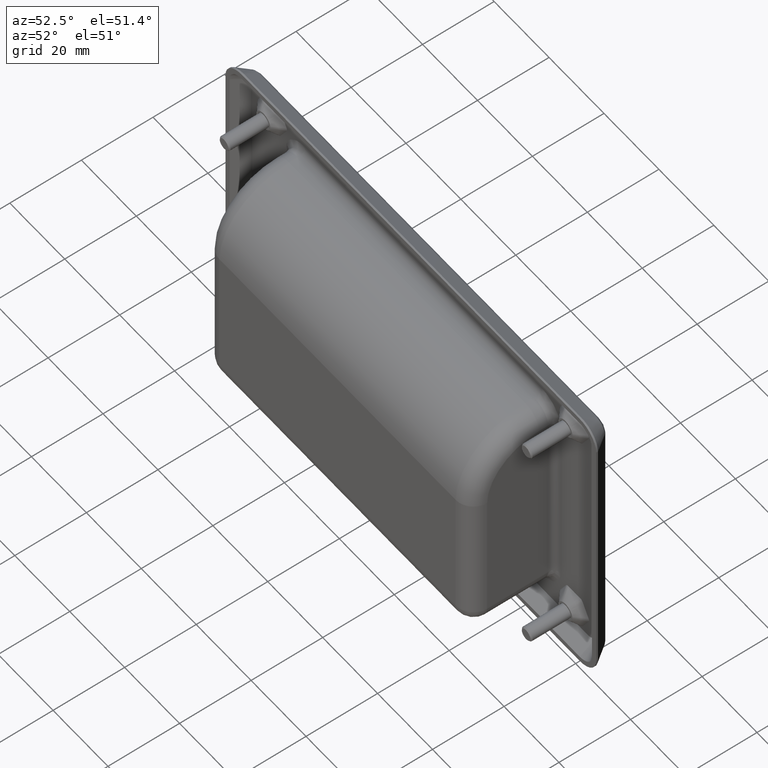
[diagram: clean part render]
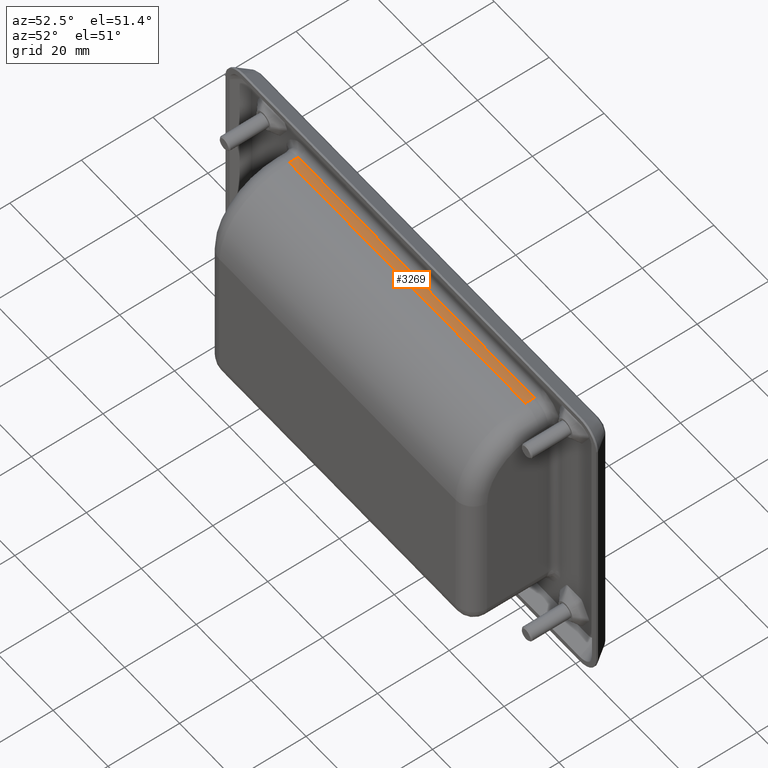
[diagram: same view with one face highlighted and labeled with its STEP entity id]
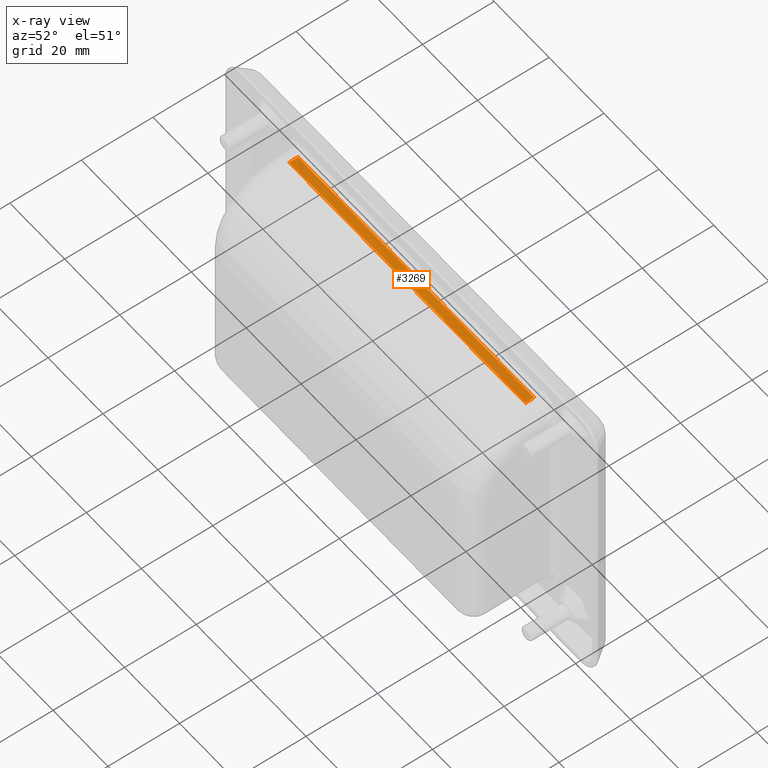
[diagram: x-ray of the same camera — body ghosted, the highlighted face saturated]
A machine part, auxiliary view. The second image highlights one B-rep face of the part: STEP entity #3269.
The next image is the same camera in x-ray: the body ghosted, the highlighted face saturated — about 0% of this face is hidden behind the body in this view.
In plain terms, the highlighted planar face has unit normal (-0, 0, 1).
Its self-contained STEP definition (entity closure, byte-faithful):
#267=PLANE('',#3572);
#454=FACE_OUTER_BOUND('',#678,.T.);
#678=EDGE_LOOP('',(#2989,#2990,#2991,#2992));
#896=LINE('',#7004,#1140);
#913=LINE('',#7219,#1157);
#918=LINE('',#7237,#1162);
#929=LINE('',#7286,#1173);
#1140=VECTOR('',#4239,86.);
#1157=VECTOR('',#4302,2.5);
#1162=VECTOR('',#4325,2.5);
#1173=VECTOR('',#4394,86.);
#1596=VERTEX_POINT('',#6967);
#1598=VERTEX_POINT('',#6995);
#1621=VERTEX_POINT('',#7218);
#1625=VERTEX_POINT('',#7235);
#2022=EDGE_CURVE('',#1598,#1596,#896,.T.);
#2057=EDGE_CURVE('',#1596,#1621,#913,.T.);
#2067=EDGE_CURVE('',#1625,#1598,#918,.T.);
#2091=EDGE_CURVE('',#1621,#1625,#929,.T.);
#2989=ORIENTED_EDGE('',*,*,#2022,.F.);
#2990=ORIENTED_EDGE('',*,*,#2067,.F.);
#2991=ORIENTED_EDGE('',*,*,#2091,.F.);
#2992=ORIENTED_EDGE('',*,*,#2057,.F.);
#3269=ADVANCED_FACE('',(#454),#267,.T.);
#3572=AXIS2_PLACEMENT_3D('',#7290,#4400,#4401);
#4239=DIRECTION('',(1.,0.,0.));
#4302=DIRECTION('',(0.,-1.,0.));
#4325=DIRECTION('',(0.,1.,0.));
#4394=DIRECTION('',(-1.,0.,0.));
#4400=DIRECTION('center_axis',(0.,0.,1.));
#4401=DIRECTION('ref_axis',(-1.,0.,0.));
#6967=CARTESIAN_POINT('',(43.,-2.,31.));
#6995=CARTESIAN_POINT('',(-43.,-2.,31.));
#7004=CARTESIAN_POINT('',(24.,-2.,31.));
#7218=CARTESIAN_POINT('',(43.,-4.5,31.));
#7219=CARTESIAN_POINT('',(43.,0.,31.));
#7235=CARTESIAN_POINT('',(-43.,-4.5,31.));
#7237=CARTESIAN_POINT('',(-43.,0.,31.));
#7286=CARTESIAN_POINT('',(0.,-4.5,31.));
#7290=CARTESIAN_POINT('Origin',(48.,0.,31.));